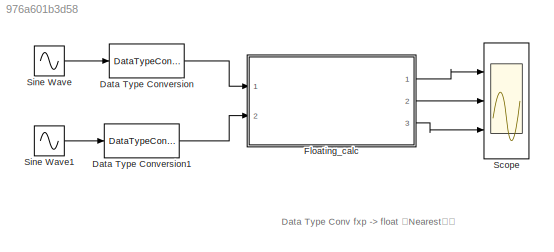
MODEL slx_976a601b3d58
KIND model
CONFIG AbsTol = auto
CONFIG FixedStep = auto
CONFIG MaxStep = auto
CONFIG MinStep = auto
CONFIG RelTol = 1e-3
CONFIG SampleTimeConstraint = Unconstrained
CONFIG Solver = FixedStepDiscrete
CONFIG SolverMode = SingleTasking
CONFIG SolverName = FixedStepDiscrete
CONFIG StartTime = 0.0
CONFIG StopTime = 1
BLOCK [DataTypeConversion] Data Type Conversion
  OutDataTypeStr = fixdt(1,16,14)
  RndMeth = Floor
  SaturateOnIntegerOverflow = off
BLOCK [DataTypeConversion] Data Type Conversion1
  OutDataTypeStr = fixdt(1,16,14)
  RndMeth = Floor
  SaturateOnIntegerOverflow = off
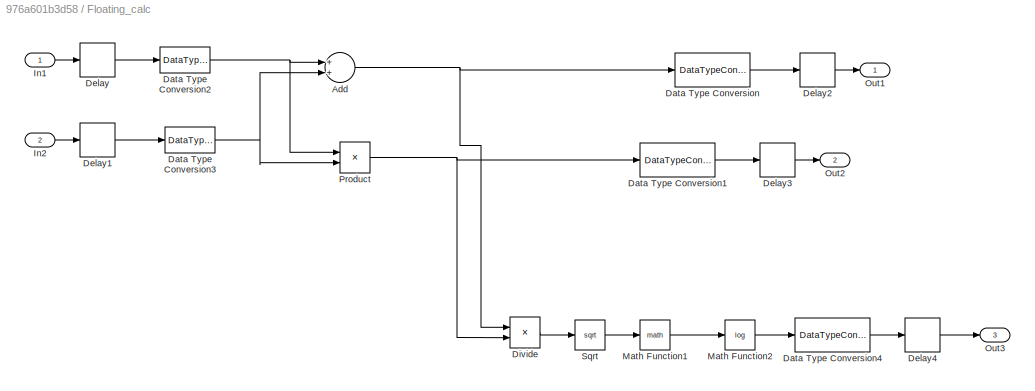
BLOCK [SubSystem] Floating_calc
  Ports = [2, 3]
  RequestExecContextInheritance = off
  Variant = off
BLOCK [Sum] Floating_calc/Add
  InputSameDT = off
  OutDataTypeStr = Inherit: Inherit via internal rule
  Ports = [2, 1]
  SaturateOnIntegerOverflow = off
BLOCK [DataTypeConversion] Floating_calc/Data Type Conversion
  OutDataTypeStr = fixdt(1,16,14)
  RndMeth = Nearest
  SaturateOnIntegerOverflow = off
BLOCK [DataTypeConversion] Floating_calc/Data Type Conversion1
  OutDataTypeStr = fixdt(1,16,14)
  RndMeth = Nearest
  SaturateOnIntegerOverflow = off
BLOCK [DataTypeConversion] Floating_calc/Data Type Conversion2
  OutDataTypeStr = double
  RndMeth = Nearest
  SaturateOnIntegerOverflow = off
BLOCK [DataTypeConversion] Floating_calc/Data Type Conversion3
  OutDataTypeStr = double
  RndMeth = Nearest
  SaturateOnIntegerOverflow = off
BLOCK [DataTypeConversion] Floating_calc/Data Type Conversion4
  OutDataTypeStr = fixdt(1,16,14)
  RndMeth = Nearest
  SaturateOnIntegerOverflow = off
BLOCK [Delay] Floating_calc/Delay
  InputPortMap = u0
  Ports = [1, 1]
BLOCK [Delay] Floating_calc/Delay1
  InputPortMap = u0
  Ports = [1, 1]
BLOCK [Delay] Floating_calc/Delay2
  InputPortMap = u0
  Ports = [1, 1]
BLOCK [Delay] Floating_calc/Delay3
  InputPortMap = u0
  Ports = [1, 1]
BLOCK [Delay] Floating_calc/Delay4
  InputPortMap = u0
  Ports = [1, 1]
BLOCK [Product] Floating_calc/Divide
  InputSameDT = off
  Inputs = */
  OutDataTypeStr = Inherit: Inherit via internal rule
  Ports = [2, 1]
BLOCK [Inport] Floating_calc/In1
  IconDisplay = Port number
BLOCK [Inport] Floating_calc/In2
  IconDisplay = Port number
  Port = 2
BLOCK [Math] Floating_calc/Math Function1
  Ports = [1, 1]
BLOCK [Math] Floating_calc/Math Function2
  Operator = log
  Ports = [1, 1]
BLOCK [Outport] Floating_calc/Out1
  IconDisplay = Port number
BLOCK [Outport] Floating_calc/Out2
  IconDisplay = Port number
  Port = 2
BLOCK [Outport] Floating_calc/Out3
  IconDisplay = Port number
  Port = 3
BLOCK [Product] Floating_calc/Product
  InputSameDT = off
  OutDataTypeStr = Inherit: Inherit via internal rule
  Ports = [2, 1]
  SaturateOnIntegerOverflow = off
BLOCK [Sqrt] Floating_calc/Sqrt
BLOCK [Scope] Scope
  NumInputPorts = 3
  Ports = [3]
  ScopeSpecificationString = Simulink.scopes.TimeScopeBlockCfg('CurrentConfiguration', extmgr.ConfigurationSet(extmgr.Configuration('Core','General UI',true),extmgr.Configuration('Core','Source UI',true),extmgr.Configuration('Sources','WiredSimulink',true,'DataLoggingSaveFormat','StructureWithTime','DataLoggingDecimation','1','DataLoggingDecimateData',true),extmgr.Configuration('Visuals','Time Domain',true,'SerializedDisplays...<+3030ch>
BLOCK [Sin] Sine Wave
  Frequency = 2*pi*70
  Ports = [0, 1]
  SampleTime = 1/1000
BLOCK [Sin] Sine Wave1
  Frequency = 2*pi*100
  Ports = [0, 1]
  SampleTime = 1/1000
ANNOTATION (root): Data Type Conv fxp -> float はNearest設定
LINE Data Type Conversion1:1 -> Floating_calc:2
LINE Data Type Conversion:1 -> Floating_calc:1
NET Floating_calc/Add:1 -> Floating_calc/Data Type Conversion:1, Floating_calc/Divide:1
LINE Floating_calc/Data Type Conversion1:1 -> Floating_calc/Delay3:1
NET Floating_calc/Data Type Conversion2:1 -> Floating_calc/Add:1, Floating_calc/Product:1
NET Floating_calc/Data Type Conversion3:1 -> Floating_calc/Add:2, Floating_calc/Product:2
LINE Floating_calc/Data Type Conversion4:1 -> Floating_calc/Delay4:1
LINE Floating_calc/Data Type Conversion:1 -> Floating_calc/Delay2:1
LINE Floating_calc/Delay1:1 -> Floating_calc/Data Type Conversion3:1
LINE Floating_calc/Delay2:1 -> Floating_calc/Out1:1
LINE Floating_calc/Delay3:1 -> Floating_calc/Out2:1
LINE Floating_calc/Delay4:1 -> Floating_calc/Out3:1
LINE Floating_calc/Delay:1 -> Floating_calc/Data Type Conversion2:1
LINE Floating_calc/Divide:1 -> Floating_calc/Sqrt:1
LINE Floating_calc/In1:1 -> Floating_calc/Delay:1
LINE Floating_calc/In2:1 -> Floating_calc/Delay1:1
LINE Floating_calc/Math Function1:1 -> Floating_calc/Math Function2:1
LINE Floating_calc/Math Function2:1 -> Floating_calc/Data Type Conversion4:1
NET Floating_calc/Product:1 -> Floating_calc/Data Type Conversion1:1, Floating_calc/Divide:2
LINE Floating_calc/Sqrt:1 -> Floating_calc/Math Function1:1
LINE Floating_calc:1 -> Scope:1
LINE Floating_calc:2 -> Scope:2
LINE Floating_calc:3 -> Scope:3
LINE Sine Wave1:1 -> Data Type Conversion1:1
LINE Sine Wave:1 -> Data Type Conversion:1
note: NET lines group one-source signal fan-out (src -> all destinations, sorted); 1:1 wires keep LINE
